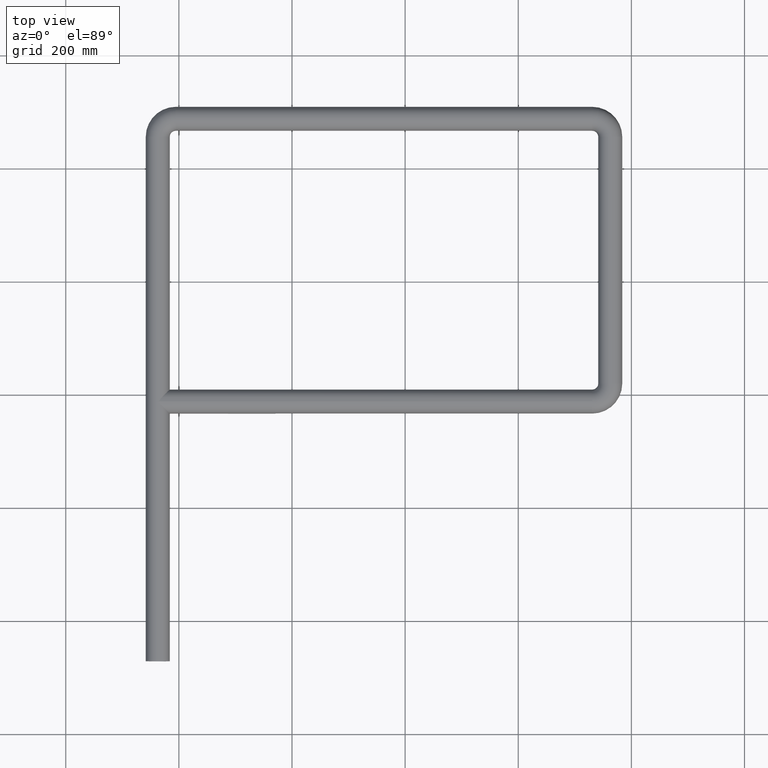
[diagram: clean part render]
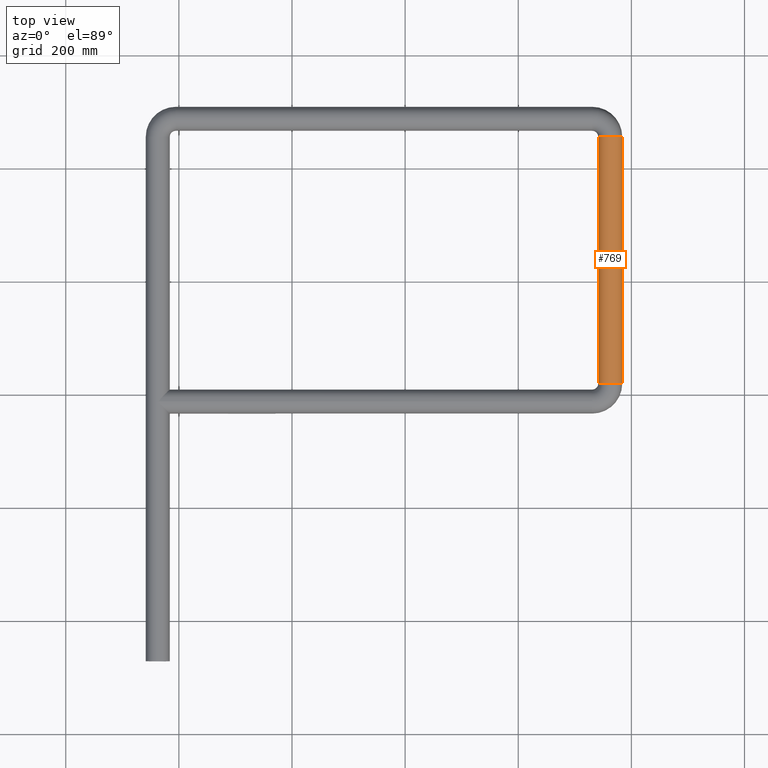
[diagram: same view with one face highlighted and labeled with its STEP entity id]
A machine part, top view. The second image highlights one B-rep face of the part: STEP entity #769.
In plain terms, the highlighted cylindrical surface (edge-blend (fillet) strip) has radius 21.2 mm, axis along (-0, 1, 0).
Its self-contained STEP definition (entity closure, byte-faithful):
#88 = LINE ( 'NONE', #522, #1377 ) ;
#109 = VERTEX_POINT ( 'NONE', #303 ) ;
#132 = EDGE_LOOP ( 'NONE', ( #663, #497, #438, #828 ) ) ;
#142 = CARTESIAN_POINT ( 'NONE',  ( 378.7999999999999545, 491.0000000000001705, 0.000000000000000000 ) ) ;
#181 = DIRECTION ( 'NONE',  ( -1.273191542001325331E-16, 1.000000000000000000, -0.000000000000000000 ) ) ;
#303 = CARTESIAN_POINT ( 'NONE',  ( 421.1999999999999318, 927.0000000000004547, 2.596251214192389164E-15 ) ) ;
#304 = DIRECTION ( 'NONE',  ( 1.000000000000000000, 0.000000000000000000, 0.000000000000000000 ) ) ;
#363 = EDGE_CURVE ( 'NONE', #1258, #109, #88, .T. ) ;
#377 = AXIS2_PLACEMENT_3D ( 'NONE', #1035, #936, #304 ) ;
#438 = ORIENTED_EDGE ( 'NONE', *, *, #782, .T. ) ;
#466 = DIRECTION ( 'NONE',  ( -1.273191542001325331E-16, 1.000000000000000000, -0.000000000000000000 ) ) ;
#493 = FACE_OUTER_BOUND ( 'NONE', #132, .T. ) ;
#497 = ORIENTED_EDGE ( 'NONE', *, *, #363, .T. ) ;
#499 = EDGE_CURVE ( 'NONE', #1258, #867, #906, .T. ) ;
#522 = CARTESIAN_POINT ( 'NONE',  ( 421.1999999999999886, 491.0000000000001705, 2.596251214192388770E-15 ) ) ;
#554 = AXIS2_PLACEMENT_3D ( 'NONE', #815, #181, #1255 ) ;
#568 = LINE ( 'NONE', #142, #619 ) ;
#584 = DIRECTION ( 'NONE',  ( 1.000000000000000000, 0.000000000000000000, 0.000000000000000000 ) ) ;
#619 = VECTOR ( 'NONE', #466, 1000.000000000000000 ) ;
#663 = ORIENTED_EDGE ( 'NONE', *, *, #499, .F. ) ;
#769 = ADVANCED_FACE ( 'NONE', ( #493 ), #1136, .T. ) ;
#781 = VERTEX_POINT ( 'NONE', #1238 ) ;
#782 = EDGE_CURVE ( 'NONE', #109, #781, #843, .T. ) ;
#815 = CARTESIAN_POINT ( 'NONE',  ( 399.9999999999999432, 491.0000000000001705, 0.000000000000000000 ) ) ;
#828 = ORIENTED_EDGE ( 'NONE', *, *, #895, .F. ) ;
#843 = CIRCLE ( 'NONE', #377, 21.19999999999999574 ) ;
#867 = VERTEX_POINT ( 'NONE', #1142 ) ;
#895 = EDGE_CURVE ( 'NONE', #867, #781, #568, .T. ) ;
#906 = CIRCLE ( 'NONE', #1058, 21.19999999999999574 ) ;
#936 = DIRECTION ( 'NONE',  ( 1.273191542001325331E-16, -1.000000000000000000, 0.000000000000000000 ) ) ;
#1035 = CARTESIAN_POINT ( 'NONE',  ( 399.9999999999998863, 927.0000000000004547, 0.000000000000000000 ) ) ;
#1058 = AXIS2_PLACEMENT_3D ( 'NONE', #1208, #1301, #584 ) ;
#1136 = CYLINDRICAL_SURFACE ( 'NONE', #554, 21.19999999999999574 ) ;
#1142 = CARTESIAN_POINT ( 'NONE',  ( 378.7999999999999545, 491.0000000000001705, 0.000000000000000000 ) ) ;
#1208 = CARTESIAN_POINT ( 'NONE',  ( 399.9999999999999432, 491.0000000000001705, 0.000000000000000000 ) ) ;
#1216 = CARTESIAN_POINT ( 'NONE',  ( 421.1999999999999886, 491.0000000000001705, 2.596251214192396264E-15 ) ) ;
#1238 = CARTESIAN_POINT ( 'NONE',  ( 378.7999999999998977, 927.0000000000004547, 0.000000000000000000 ) ) ;
#1251 = DIRECTION ( 'NONE',  ( -1.273191542001325331E-16, 1.000000000000000000, -0.000000000000000000 ) ) ;
#1255 = DIRECTION ( 'NONE',  ( -1.000000000000000000, 0.000000000000000000, 0.000000000000000000 ) ) ;
#1258 = VERTEX_POINT ( 'NONE', #1216 ) ;
#1301 = DIRECTION ( 'NONE',  ( 1.273191542001325331E-16, -1.000000000000000000, 0.000000000000000000 ) ) ;
#1377 = VECTOR ( 'NONE', #1251, 1000.000000000000000 ) ;